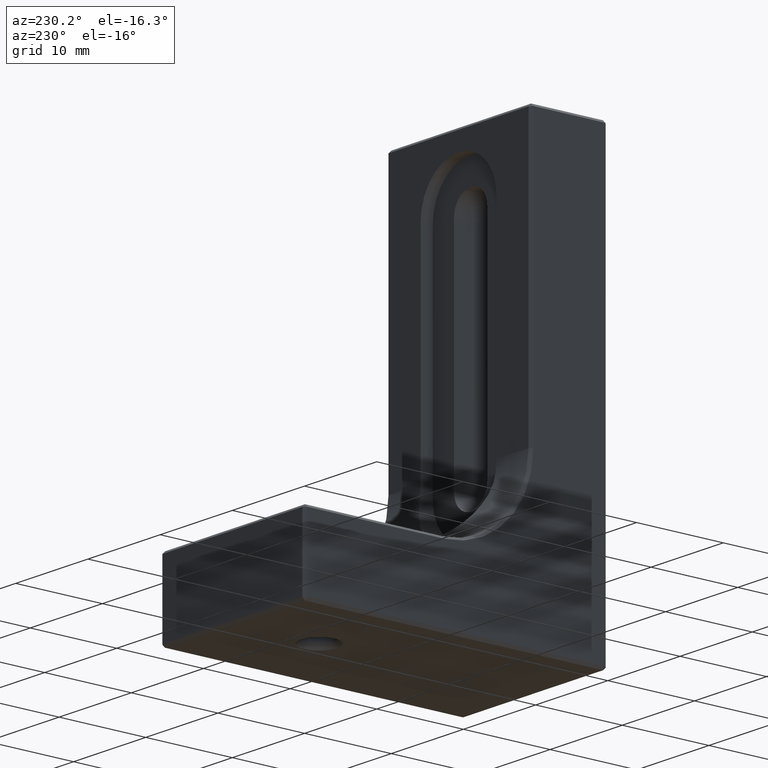
[diagram: clean part render]
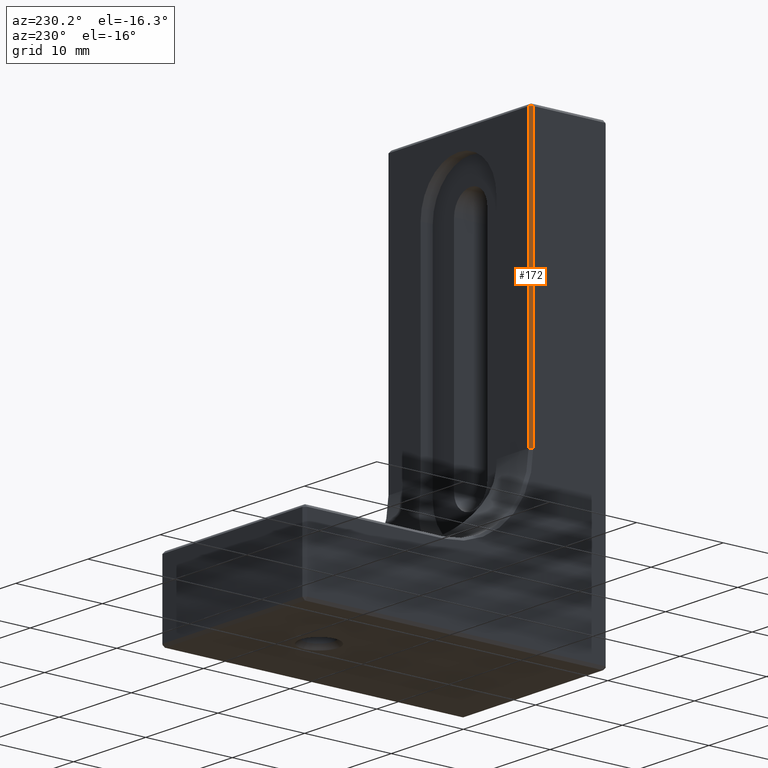
[diagram: same view with one face highlighted and labeled with its STEP entity id]
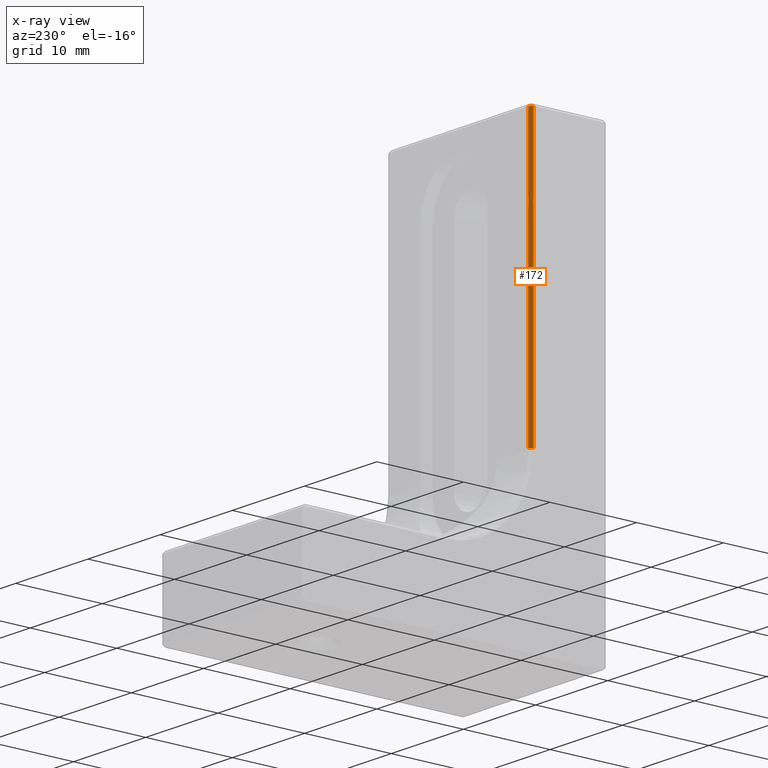
[diagram: x-ray of the same camera — body ghosted, the highlighted face saturated]
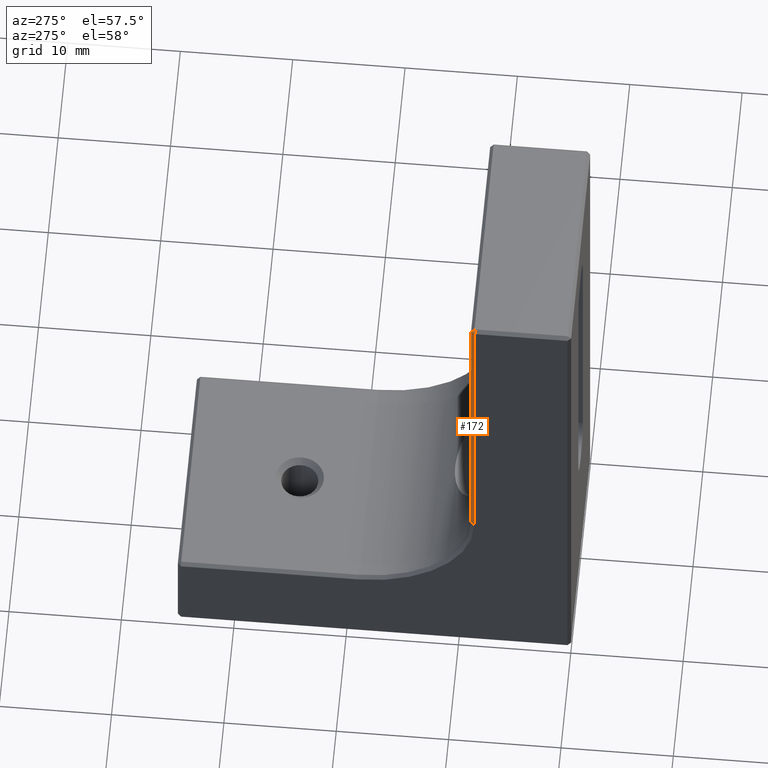
[diagram: same view with one face highlighted and labeled with its STEP entity id]
A machine part, auxiliary view. The second image highlights one B-rep face of the part: STEP entity #172.
The next image is the same camera in x-ray: the body ghosted, the highlighted face saturated — about 0% of this face is hidden behind the body in this view.
A second angle (auxiliary view) of the same face is appended — the face is thin or edge-on in the first view.
In plain terms, the highlighted planar face has unit normal (0.7071, -0.7071, -0).
Its self-contained STEP definition (entity closure, byte-faithful):
#6 = VECTOR ( 'NONE', #1582, 1000.000000000000114 ) ;
#120 = EDGE_CURVE ( 'NONE', #574, #1485, #201, .T. ) ;
#172 = ADVANCED_FACE ( 'NONE', ( #319 ), #1158, .F. ) ;
#201 = LINE ( 'NONE', #1531, #457 ) ;
#233 = VECTOR ( 'NONE', #899, 1000.000000000000000 ) ;
#277 = LINE ( 'NONE', #540, #233 ) ;
#309 = DIRECTION ( 'NONE',  ( 0.7071067811865386910, -0.7071067811865564545, -8.782587589594615260E-17 ) ) ;
#319 = FACE_OUTER_BOUND ( 'NONE', #1275, .T. ) ;
#328 = DIRECTION ( 'NONE',  ( 0.000000000000000000, 1.242045448193417777E-16, -1.000000000000000000 ) ) ;
#457 = VECTOR ( 'NONE', #328, 1000.000000000000000 ) ;
#473 = DIRECTION ( 'NONE',  ( 0.7071067811865564545, 0.7071067811865386910, -1.911167930232289313E-14 ) ) ;
#474 = LINE ( 'NONE', #963, #6 ) ;
#540 = CARTESIAN_POINT ( 'NONE',  ( -9.699999999999992184, 8.899999999999998579, 8.899999999999995026 ) ) ;
#574 = VERTEX_POINT ( 'NONE', #1049 ) ;
#617 = ORIENTED_EDGE ( 'NONE', *, *, #1015, .T. ) ;
#694 = CARTESIAN_POINT ( 'NONE',  ( -9.849999999999999645, 8.749999999999989342, 50.49999999999999289 ) ) ;
#808 = LINE ( 'NONE', #694, #925 ) ;
#899 = DIRECTION ( 'NONE',  ( 0.000000000000000000, -1.242045448193417777E-16, 1.000000000000000000 ) ) ;
#922 = EDGE_CURVE ( 'NONE', #1346, #1107, #277, .T. ) ;
#925 = VECTOR ( 'NONE', #473, 999.9999999999998863 ) ;
#963 = CARTESIAN_POINT ( 'NONE',  ( -10.00000000000000000, 8.599999999999996092, 18.89999999999999503 ) ) ;
#1015 = EDGE_CURVE ( 'NONE', #574, #1107, #808, .T. ) ;
#1031 = ORIENTED_EDGE ( 'NONE', *, *, #1430, .F. ) ;
#1049 = CARTESIAN_POINT ( 'NONE',  ( -10.00000000000000000, 8.599999999999992539, 50.49999999999999289 ) ) ;
#1059 = CARTESIAN_POINT ( 'NONE',  ( -9.699999999999992184, 8.899999999999993250, 50.49999999999998579 ) ) ;
#1107 = VERTEX_POINT ( 'NONE', #1059 ) ;
#1152 = CARTESIAN_POINT ( 'NONE',  ( -9.699999999999992184, 8.899999999999998579, 8.899999999999995026 ) ) ;
#1158 = PLANE ( 'NONE',  #1377 ) ;
#1186 = CARTESIAN_POINT ( 'NONE',  ( -9.699999999999992184, 8.899999999999996803, 18.89999999999999503 ) ) ;
#1223 = ORIENTED_EDGE ( 'NONE', *, *, #922, .F. ) ;
#1268 = DIRECTION ( 'NONE',  ( 0.000000000000000000, -1.242045448193417777E-16, 1.000000000000000000 ) ) ;
#1275 = EDGE_LOOP ( 'NONE', ( #617, #1223, #1031, #1365 ) ) ;
#1341 = CARTESIAN_POINT ( 'NONE',  ( -10.00000000000000000, 8.599999999999996092, 18.89999999999999503 ) ) ;
#1346 = VERTEX_POINT ( 'NONE', #1186 ) ;
#1365 = ORIENTED_EDGE ( 'NONE', *, *, #120, .F. ) ;
#1377 = AXIS2_PLACEMENT_3D ( 'NONE', #1152, #309, #1268 ) ;
#1430 = EDGE_CURVE ( 'NONE', #1485, #1346, #474, .T. ) ;
#1485 = VERTEX_POINT ( 'NONE', #1341 ) ;
#1531 = CARTESIAN_POINT ( 'NONE',  ( -10.00000000000000000, 8.599999999999997868, 1.068159085446339032E-15 ) ) ;
#1582 = DIRECTION ( 'NONE',  ( 0.7071067811865577868, 0.7071067811865372477, 0.000000000000000000 ) ) ;